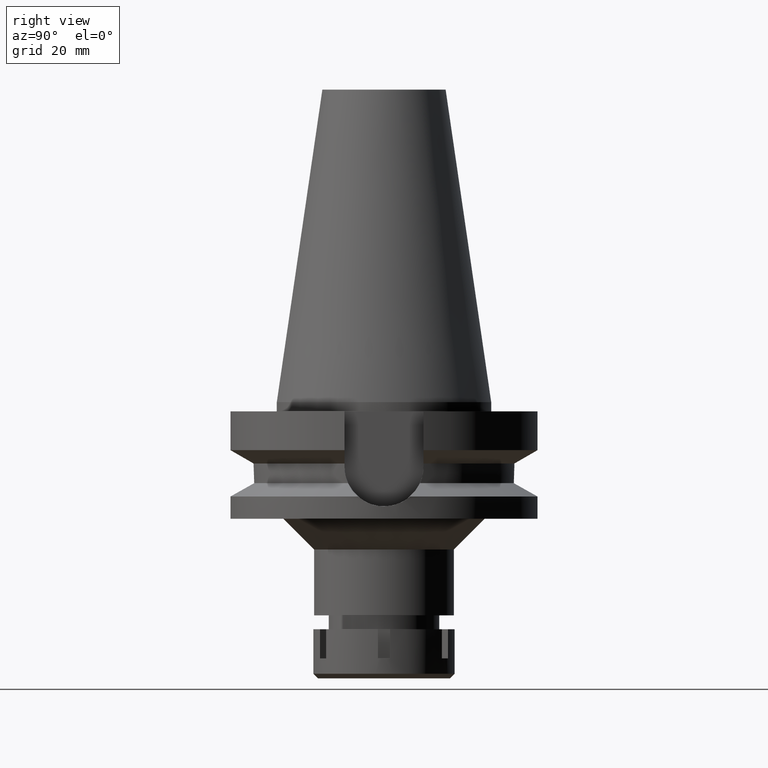
[diagram: clean part render]
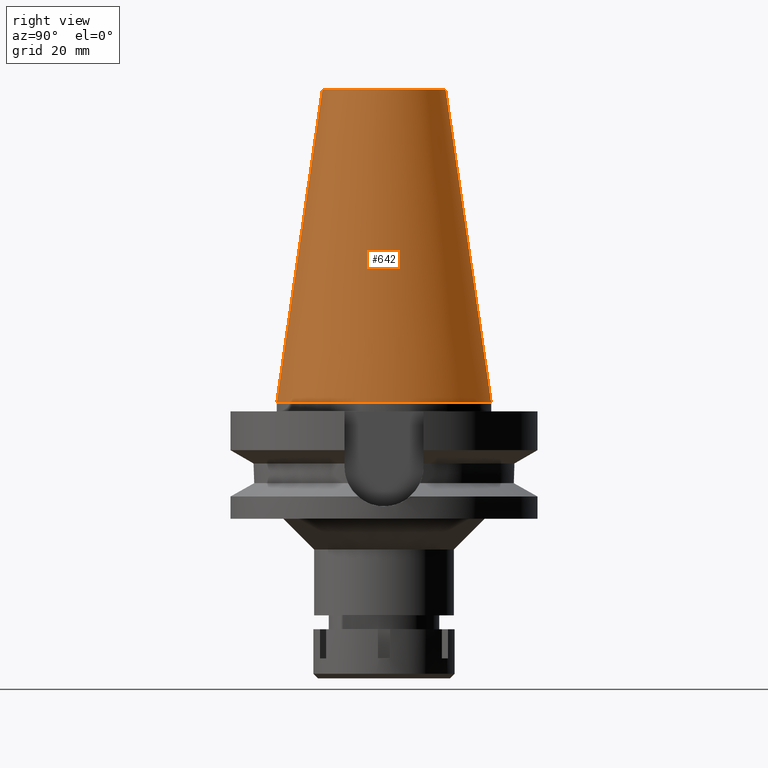
[diagram: same view with one face highlighted and labeled with its STEP entity id]
A machine part, right view. The second image highlights one B-rep face of the part: STEP entity #642.
In plain terms, the highlighted conical surface has half-angle 8.297 deg.
Its self-contained STEP definition (entity closure, byte-faithful):
#6 = LINE ( 'NONE', #1414, #1574 ) ;
#18 = ORIENTED_EDGE ( 'NONE', *, *, #1448, .F. ) ;
#176 = CARTESIAN_POINT ( 'NONE',  ( 0.0000000000000000000, 20.07942971896000017, 101.7999999999999972 ) ) ;
#335 = ORIENTED_EDGE ( 'NONE', *, *, #1086, .F. ) ;
#368 = CARTESIAN_POINT ( 'NONE',  ( 0.0000000000000000000, 1.847992019912999597E-14, 50.89999999999999858 ) ) ;
#546 = CIRCLE ( 'NONE', #2135, 20.07942971896000017 ) ;
#642 = ADVANCED_FACE ( 'NONE', ( #1792 ), #1598, .T. ) ;
#744 = DIRECTION ( 'NONE',  ( 0.0000000000000000000, 1.000000000000000000, 0.0000000000000000000 ) ) ;
#871 = EDGE_CURVE ( 'NONE', #1991, #903, #546, .T. ) ;
#888 = AXIS2_PLACEMENT_3D ( 'NONE', #2711, #2769, #744 ) ;
#903 = VERTEX_POINT ( 'NONE', #2103 ) ;
#977 = DIRECTION ( 'NONE',  ( 0.0000000000000000000, 0.0000000000000000000, -1.000000000000000000 ) ) ;
#1086 = EDGE_CURVE ( 'NONE', #2190, #2568, #3065, .T. ) ;
#1108 = DIRECTION ( 'NONE',  ( 0.0000000000000000000, -0.1443043893538948075, -0.9895333461855641000 ) ) ;
#1222 = ORIENTED_EDGE ( 'NONE', *, *, #3216, .T. ) ;
#1390 = CARTESIAN_POINT ( 'NONE',  ( 0.0000000000000000000, 34.92499999999999716, 4.121147867409000121E-13 ) ) ;
#1414 = CARTESIAN_POINT ( 'NONE',  ( 0.0000000000000000000, -20.07942971896000017, 101.7999999999999972 ) ) ;
#1448 = EDGE_CURVE ( 'NONE', #1991, #2190, #2059, .T. ) ;
#1574 = VECTOR ( 'NONE', #1108, 1000.000000000000114 ) ;
#1598 = CONICAL_SURFACE ( 'NONE', #1716, 27.50221485948000222, 0.1448099680379422438 ) ;
#1716 = AXIS2_PLACEMENT_3D ( 'NONE', #368, #977, #2637 ) ;
#1756 = DIRECTION ( 'NONE',  ( 0.0000000000000000000, 0.0000000000000000000, -1.000000000000000000 ) ) ;
#1792 = FACE_OUTER_BOUND ( 'NONE', #2957, .T. ) ;
#1991 = VERTEX_POINT ( 'NONE', #176 ) ;
#2059 = LINE ( 'NONE', #2671, #2825 ) ;
#2103 = CARTESIAN_POINT ( 'NONE',  ( 0.0000000000000000000, -20.07942971896000017, 101.7999999999999972 ) ) ;
#2135 = AXIS2_PLACEMENT_3D ( 'NONE', #3228, #1756, #2603 ) ;
#2190 = VERTEX_POINT ( 'NONE', #1390 ) ;
#2212 = ORIENTED_EDGE ( 'NONE', *, *, #871, .T. ) ;
#2498 = CARTESIAN_POINT ( 'NONE',  ( 0.0000000000000000000, -34.92499999999999716, 4.121147867409000121E-13 ) ) ;
#2568 = VERTEX_POINT ( 'NONE', #2498 ) ;
#2603 = DIRECTION ( 'NONE',  ( 0.0000000000000000000, 1.000000000000000000, 0.0000000000000000000 ) ) ;
#2637 = DIRECTION ( 'NONE',  ( 0.0000000000000000000, -1.000000000000000000, 0.0000000000000000000 ) ) ;
#2671 = CARTESIAN_POINT ( 'NONE',  ( 0.0000000000000000000, 20.07942971896000017, 101.7999999999999972 ) ) ;
#2711 = CARTESIAN_POINT ( 'NONE',  ( 0.0000000000000000000, 1.847992019912999597E-14, 3.979039320256999774E-13 ) ) ;
#2769 = DIRECTION ( 'NONE',  ( 0.0000000000000000000, 0.0000000000000000000, -1.000000000000000000 ) ) ;
#2825 = VECTOR ( 'NONE', #3461, 1000.000000000000114 ) ;
#2957 = EDGE_LOOP ( 'NONE', ( #2212, #1222, #335, #18 ) ) ;
#3065 = CIRCLE ( 'NONE', #888, 34.92499999999999716 ) ;
#3216 = EDGE_CURVE ( 'NONE', #903, #2568, #6, .T. ) ;
#3228 = CARTESIAN_POINT ( 'NONE',  ( 0.0000000000000000000, 1.847992019912999597E-14, 101.7999999999999972 ) ) ;
#3461 = DIRECTION ( 'NONE',  ( 0.0000000000000000000, 0.1443043893538948075, -0.9895333461855641000 ) ) ;